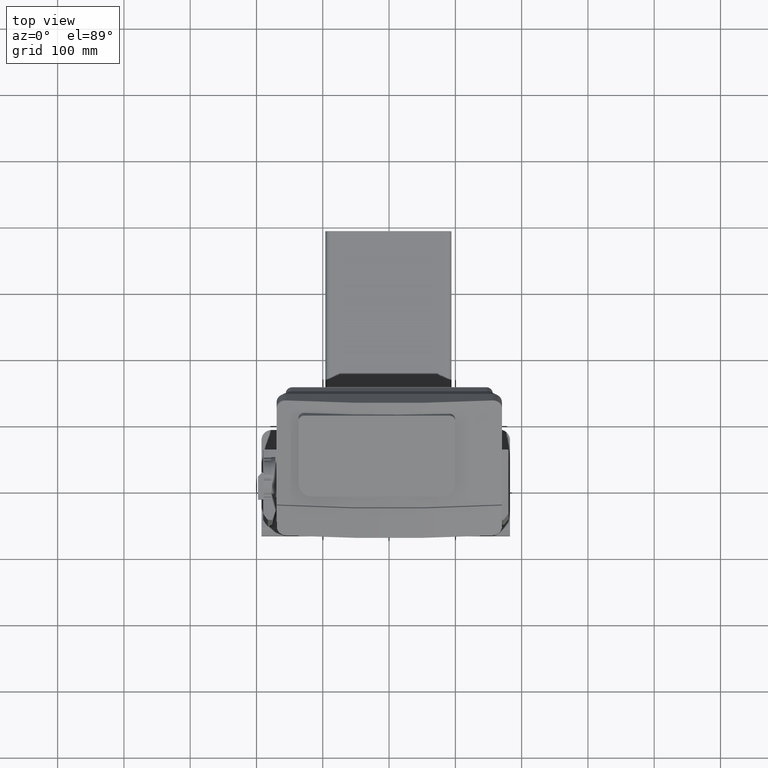
[diagram: clean part render]
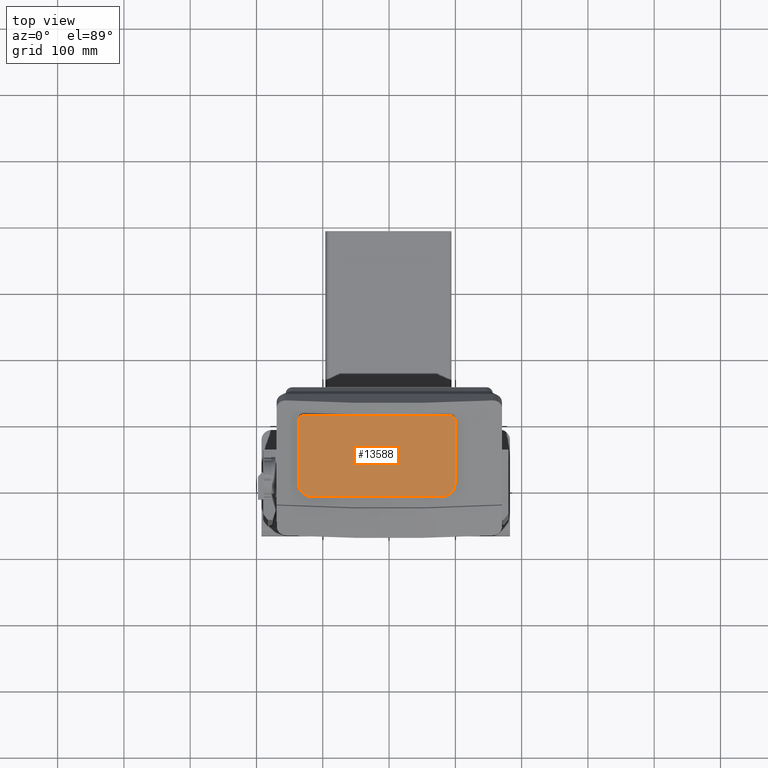
[diagram: same view with one face highlighted and labeled with its STEP entity id]
A machine part, top view. The second image highlights one B-rep face of the part: STEP entity #13588.
In plain terms, the highlighted face is a freeform B-spline surface patch.
Its self-contained STEP definition (entity closure, byte-faithful):
#13473=CARTESIAN_POINT('',(-115.03061832758328,-320.46060499048838,812.28379546749682));
#13474=VERTEX_POINT('',#13473);
#13481=CARTESIAN_POINT('',(-136.53061832758334,-301.84105880912318,823.03379546749738));
#13482=VERTEX_POINT('',#13481);
#13483=CARTESIAN_POINT('',(-115.03061832758334,-301.84105880912318,823.03379546749716));
#13484=DIRECTION('',(-1.998401E-015,0.500000000000016,-0.866025403784429));
#13485=DIRECTION('',(-0.707106781186548,-0.612372435695788,-0.353553390593284));
#13486=AXIS2_PLACEMENT_3D('',#13483,#13484,#13485);
#13487=CIRCLE('',#13486,21.500000000000004);
#13488=EDGE_CURVE('',#13474,#13482,#13487,.T.);
#13505=CARTESIAN_POINT('',(-136.53061832758368,-206.57826439283565,878.03379546749909));
#13506=VERTEX_POINT('',#13505);
#13507=CARTESIAN_POINT('',(-136.53061832758337,-301.84105880912318,823.03379546749738));
#13508=DIRECTION('',(-3.100550E-015,0.86602540378443,0.500000000000014));
#13509=VECTOR('',#13508,110.00000000000023);
#13510=LINE('',#13507,#13509);
#13511=EDGE_CURVE('',#13482,#13506,#13510,.T.);
#13530=CARTESIAN_POINT('',(-136.53061832758388,-320.4606049904894,812.28379546749647));
#13531=CARTESIAN_POINT('',(99.469381672416688,-320.46060499048832,812.28379546749602));
#13532=CARTESIAN_POINT('',(-136.53061832758431,-199.21704846066729,882.28379546749954));
#13533=CARTESIAN_POINT('',(99.469381672416262,-199.21704846066621,882.2837954674992));
#13534=B_SPLINE_SURFACE_WITH_KNOTS('',1,1,((#13530,#13532),(#13531,#13533)),.UNSPECIFIED.,.F.,.F.,.U.,(2,2),(2,2),(0.0,236.00000000000057),(0.0,140.00000000000213),.UNSPECIFIED.);
#13535=ORIENTED_EDGE('',*,*,#13488,.F.);
#13536=CARTESIAN_POINT('',(77.969381672416205,-320.46060499048747,812.2837954674967));
#13537=VERTEX_POINT('',#13536);
#13538=CARTESIAN_POINT('',(77.969381672416205,-320.46060499048741,812.28379546749636));
#13539=DIRECTION('',(-1.0,0.0,0.0));
#13540=VECTOR('',#13539,192.99999999999949);
#13541=LINE('',#13538,#13540);
#13542=EDGE_CURVE('',#13537,#13474,#13541,.T.);
#13543=ORIENTED_EDGE('',*,*,#13542,.F.);
#13544=CARTESIAN_POINT('',(99.469381672416091,-301.84105880912227,823.0337954674967));
#13545=VERTEX_POINT('',#13544);
#13546=CARTESIAN_POINT('',(77.969381672416091,-301.84105880912227,823.0337954674967));
#13547=DIRECTION('',(-2.692291E-015,0.500000000000013,-0.866025403784431));
#13548=DIRECTION('',(0.707106781186549,-0.612372435695787,-0.353553390593284));
#13549=AXIS2_PLACEMENT_3D('',#13546,#13547,#13548);
#13550=CIRCLE('',#13549,21.500000000000004);
#13551=EDGE_CURVE('',#13545,#13537,#13550,.T.);
#13552=ORIENTED_EDGE('',*,*,#13551,.F.);
#13553=CARTESIAN_POINT('',(99.46938167241575,-206.57826439283502,878.03379546749852));
#13554=VERTEX_POINT('',#13553);
#13555=CARTESIAN_POINT('',(99.469381672415793,-206.57826439283494,878.03379546749841));
#13556=DIRECTION('',(2.971361E-015,-0.86602540378443,-0.500000000000014));
#13557=VECTOR('',#13556,110.0);
#13558=LINE('',#13555,#13557);
#13559=EDGE_CURVE('',#13554,#13545,#13558,.T.);
#13560=ORIENTED_EDGE('',*,*,#13559,.F.);
#13561=CARTESIAN_POINT('',(90.96938167241575,-199.21704846066694,882.28379546749852));
#13562=VERTEX_POINT('',#13561);
#13563=CARTESIAN_POINT('',(90.96938167241575,-206.5782643928348,878.03379546749841));
#13564=DIRECTION('',(-5.412337E-015,0.500000000000013,-0.866025403784431));
#13565=DIRECTION('',(0.707106781186543,0.612372435695795,0.353553390593282));
#13566=AXIS2_PLACEMENT_3D('',#13563,#13564,#13565);
#13567=CIRCLE('',#13566,8.500000000000002);
#13568=EDGE_CURVE('',#13562,#13554,#13567,.T.);
#13569=ORIENTED_EDGE('',*,*,#13568,.F.);
#13570=CARTESIAN_POINT('',(-128.03061832758374,-199.21704846066808,882.28379546749909));
#13571=VERTEX_POINT('',#13570);
#13572=CARTESIAN_POINT('',(-128.03061832758374,-199.21704846066814,882.28379546749909));
#13573=DIRECTION('',(1.0,0.0,0.0));
#13574=VECTOR('',#13573,218.99999999999949);
#13575=LINE('',#13572,#13574);
#13576=EDGE_CURVE('',#13571,#13562,#13575,.T.);
#13577=ORIENTED_EDGE('',*,*,#13576,.F.);
#13578=CARTESIAN_POINT('',(-128.03061832758368,-206.57826439283593,878.03379546749875));
#13579=DIRECTION('',(-6.106227E-016,0.500000000000011,-0.866025403784432));
#13580=DIRECTION('',(-0.707106781186543,0.612372435695794,0.353553390593285));
#13581=AXIS2_PLACEMENT_3D('',#13578,#13579,#13580);
#13582=CIRCLE('',#13581,8.500000000000002);
#13583=EDGE_CURVE('',#13506,#13571,#13582,.T.);
#13584=ORIENTED_EDGE('',*,*,#13583,.F.);
#13585=ORIENTED_EDGE('',*,*,#13511,.F.);
#13586=EDGE_LOOP('',(#13535,#13543,#13552,#13560,#13569,#13577,#13584,#13585));
#13587=FACE_OUTER_BOUND('',#13586,.T.);
#13588=ADVANCED_FACE('',(#13587),#13534,.T.);